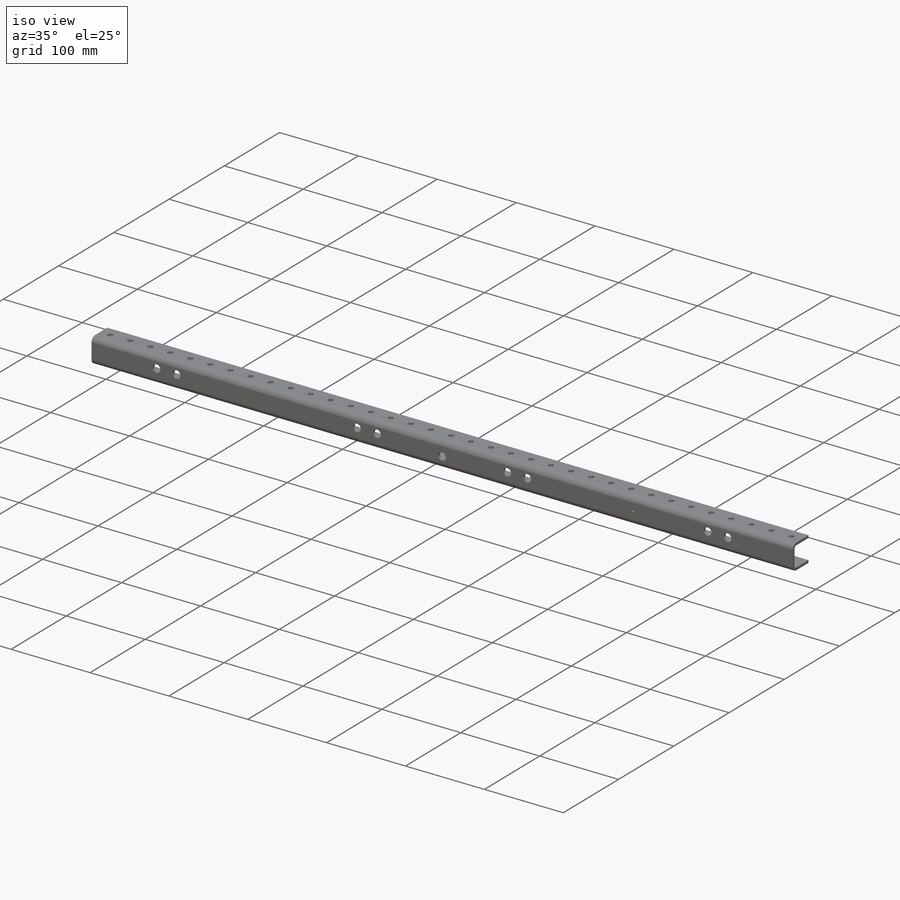
[diagram: iso view]
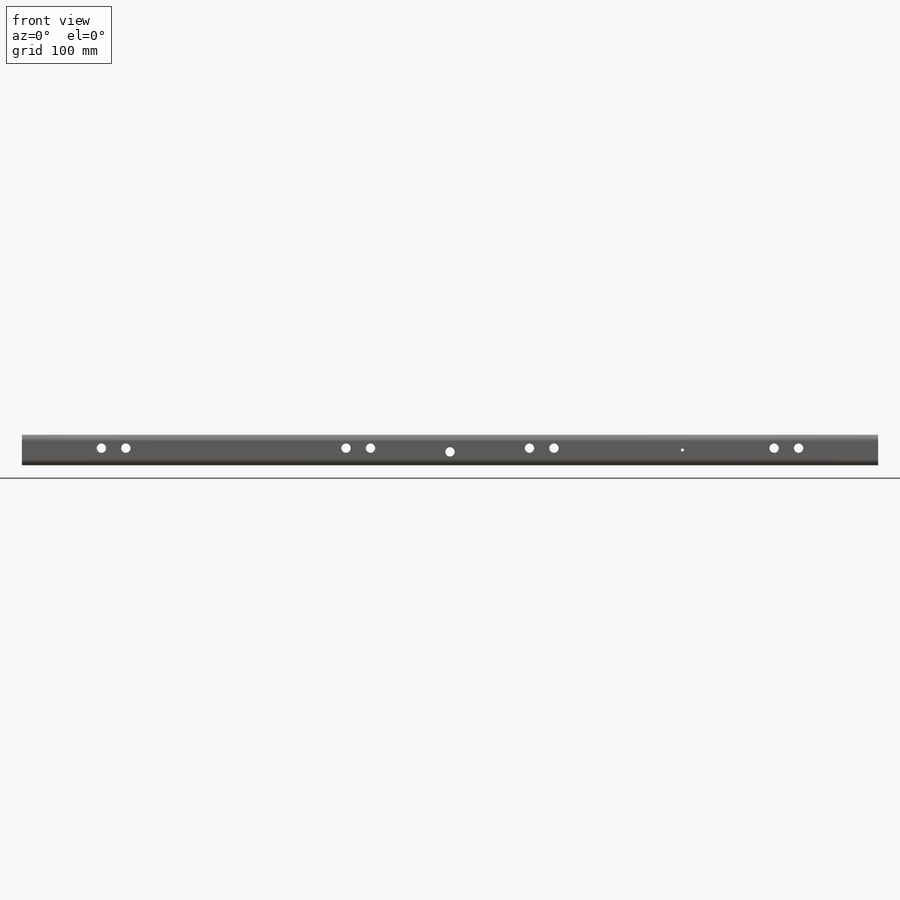
[diagram: front view]
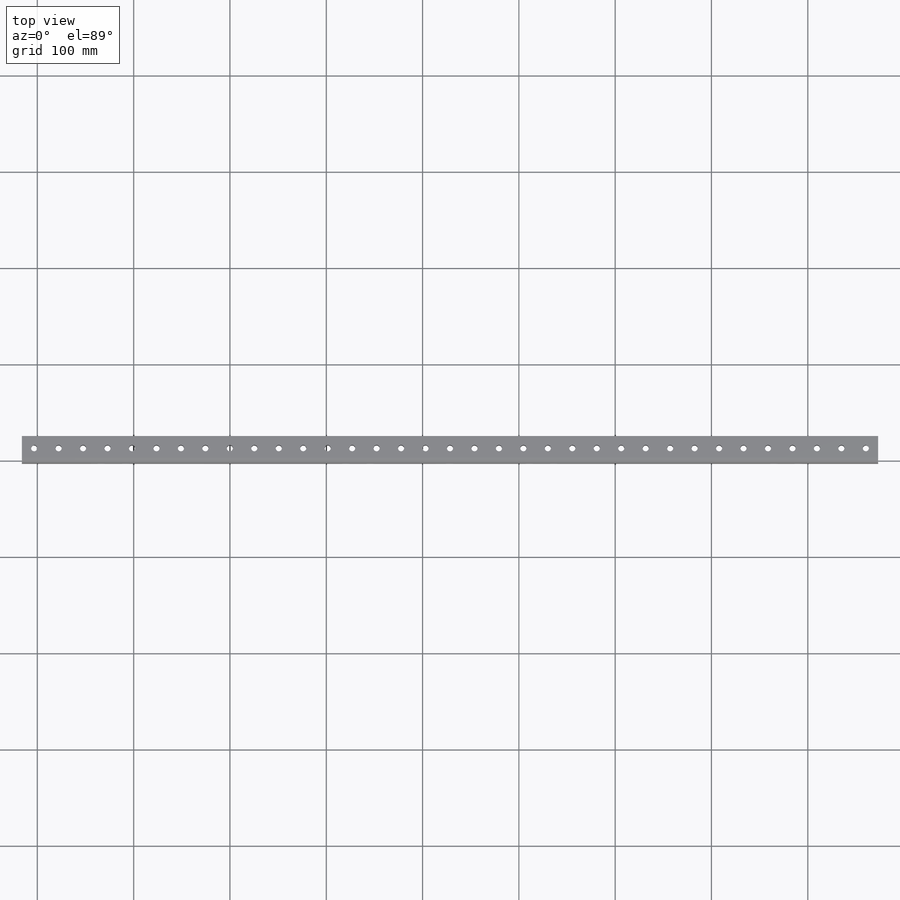
[diagram: top view]
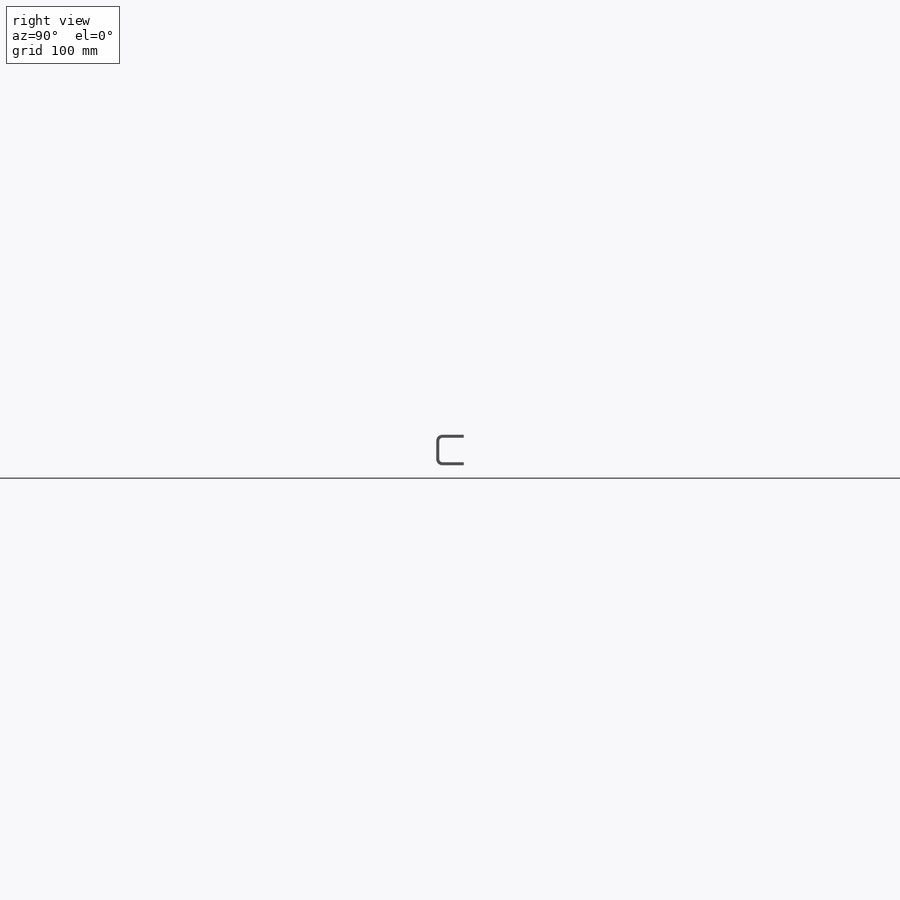
[diagram: right view]
SOLIDWORKS PART (.sldprt)
format: sldprt  version: not decoded by parser v0  size: 1,056,256 bytes
history: native  units: mm
features: sketch x162, hole x80, fillet x4, material x1, plane x1, extrude x1, cut_extrude x1 (+15 scaffold rows collapsed)
feature tree (265):
  scaffold x15  (default folders/planes/origin — collapsed)
  material  "6061-T6 (SS)"
  plane  "Plane1"  Offset=3.175mm
  sketch  "Sketch1"
  extrude  "Extrude1"  Depth=28.575mm
  sketch  "Sketch2"
  cut_extrude  "Extrude2"  Depth=889mm
  hole  "Hole1"  Diameter=6.35mm Depth=3.175mm
  sketch  "Sketch4"
  sketch  "Sketch3"  dims[Diameter=6.35mm Depth=3.175mm]
  hole  "Hole2"  Diameter=6.35mm Depth=3.175mm
  sketch  "Sketch6"
  sketch  "Sketch5"  dims[Diameter=6.35mm Depth=3.175mm]
  hole  "Hole3"  Diameter=6.35mm Depth=3.175mm
  sketch  "Sketch8"
  sketch  "Sketch7"  dims[Diameter=6.35mm Depth=3.175mm]
  hole  "Hole4"  Diameter=6.35mm Depth=3.175mm
  sketch  "Sketch10"
  sketch  "Sketch9"  dims[Diameter=6.35mm Depth=3.175mm]
  hole  "Hole5"  Diameter=6.35mm Depth=3.175mm
  sketch  "Sketch12"
  sketch  "Sketch11"  dims[Diameter=6.35mm Depth=3.175mm]
  hole  "Hole6"  Diameter=6.35mm Depth=3.175mm
  sketch  "Sketch14"
  sketch  "Sketch13"  dims[Diameter=6.35mm Depth=3.175mm]
  hole  "Hole7"  Diameter=6.35mm Depth=3.175mm
  sketch  "Sketch16"
  sketch  "Sketch15"  dims[Diameter=6.35mm Depth=3.175mm]
  hole  "Hole8"  Diameter=6.35mm Depth=3.175mm
  sketch  "Sketch18"
  sketch  "Sketch17"  dims[Diameter=6.35mm Depth=3.175mm]
  hole  "Hole9"  Diameter=6.35mm Depth=3.175mm
  sketch  "Sketch20"
  sketch  "Sketch19"  dims[Diameter=6.35mm Depth=3.175mm]
  hole  "Hole10"  Diameter=6.35mm Depth=3.175mm
  sketch  "Sketch22"
  sketch  "Sketch21"  dims[Diameter=6.35mm Depth=3.175mm]
  hole  "Hole11"  Diameter=6.35mm Depth=3.175mm
  sketch  "Sketch24"
  sketch  "Sketch23"  dims[Diameter=6.35mm Depth=3.175mm]
  hole  "Hole12"  Diameter=6.35mm Depth=3.175mm
  sketch  "Sketch26"
  sketch  "Sketch25"  dims[Diameter=6.35mm Depth=3.175mm]
  hole  "Hole13"  Diameter=6.35mm Depth=3.175mm
  sketch  "Sketch28"
  sketch  "Sketch27"  dims[Diameter=6.35mm Depth=3.175mm]
  hole  "Hole14"  Diameter=6.35mm Depth=3.175mm
  sketch  "Sketch30"
  sketch  "Sketch29"  dims[Diameter=6.35mm Depth=3.175mm]
  hole  "Hole15"  Diameter=6.35mm Depth=3.175mm
  sketch  "Sketch32"
  sketch  "Sketch31"  dims[Diameter=6.35mm Depth=3.175mm]
  hole  "Hole16"  Diameter=6.35mm Depth=3.175mm
  sketch  "Sketch34"
  sketch  "Sketch33"  dims[Diameter=6.35mm Depth=3.175mm]
  hole  "Hole17"  Diameter=6.35mm Depth=3.175mm
  sketch  "Sketch36"
  sketch  "Sketch35"  dims[Diameter=6.35mm Depth=3.175mm]
  hole  "Hole18"  Diameter=6.35mm Depth=3.175mm
  sketch  "Sketch38"
  sketch  "Sketch37"  dims[Diameter=6.35mm Depth=3.175mm]
  hole  "Hole19"  Diameter=6.35mm Depth=3.175mm
  sketch  "Sketch40"
  sketch  "Sketch39"  dims[Diameter=6.35mm Depth=3.175mm]
  hole  "Hole20"  Diameter=6.35mm Depth=3.175mm
  sketch  "Sketch42"
  sketch  "Sketch41"  dims[Diameter=6.35mm Depth=3.175mm]
  hole  "Hole21"  Diameter=6.35mm Depth=3.175mm
  sketch  "Sketch44"
  sketch  "Sketch43"  dims[Diameter=6.35mm Depth=3.175mm]
  hole  "Hole22"  Diameter=6.35mm Depth=3.175mm
  sketch  "Sketch46"
  sketch  "Sketch45"  dims[Diameter=6.35mm Depth=3.175mm]
  hole  "Hole23"  Diameter=6.35mm Depth=3.175mm
  sketch  "Sketch48"
  sketch  "Sketch47"  dims[Diameter=6.35mm Depth=3.175mm]
  hole  "Hole24"  Diameter=6.35mm Depth=3.175mm
  sketch  "Sketch50"
  sketch  "Sketch49"  dims[Diameter=6.35mm Depth=3.175mm]
  hole  "Hole25"  Diameter=6.35mm Depth=3.175mm
  sketch  "Sketch52"
  sketch  "Sketch51"  dims[Diameter=6.35mm Depth=3.175mm]
  hole  "Hole26"  Diameter=6.35mm Depth=3.175mm
  sketch  "Sketch54"
  sketch  "Sketch53"  dims[Diameter=6.35mm Depth=3.175mm]
  hole  "Hole27"  Diameter=6.35mm Depth=3.175mm
  sketch  "Sketch56"
  sketch  "Sketch55"  dims[Diameter=6.35mm Depth=3.175mm]
  hole  "Hole28"  Diameter=6.35mm Depth=3.175mm
  sketch  "Sketch58"
  sketch  "Sketch57"  dims[Diameter=6.35mm Depth=3.175mm]
  hole  "Hole29"  Diameter=6.35mm Depth=3.175mm
  sketch  "Sketch60"
  sketch  "Sketch59"  dims[Diameter=6.35mm Depth=3.175mm]
  hole  "Hole30"  Diameter=6.35mm Depth=3.175mm
  sketch  "Sketch62"
  sketch  "Sketch61"  dims[Diameter=6.35mm Depth=3.175mm]
  hole  "Hole31"  Diameter=6.35mm Depth=3.175mm
  sketch  "Sketch64"
  sketch  "Sketch63"  dims[Diameter=6.35mm Depth=3.175mm]
  hole  "Hole32"  Diameter=6.35mm Depth=3.175mm
  sketch  "Sketch66"
  sketch  "Sketch65"  dims[Diameter=6.35mm Depth=3.175mm]
  hole  "Hole33"  Diameter=6.35mm Depth=3.175mm
  sketch  "Sketch68"
  sketch  "Sketch67"  dims[Diameter=6.35mm Depth=3.175mm]
  hole  "Hole34"  Diameter=6.35mm Depth=3.175mm
  sketch  "Sketch70"
  sketch  "Sketch69"  dims[Diameter=6.35mm Depth=3.175mm]
  hole  "Hole35"  Diameter=6.35mm Depth=3.175mm
  sketch  "Sketch72"
  sketch  "Sketch71"  dims[Diameter=6.35mm Depth=3.175mm]
  hole  "Hole36"  Diameter=9.652mm Depth=28.575mm
  sketch  "Sketch74"
  sketch  "Sketch73"  dims[Diameter=9.652mm Depth=28.575mm]
  hole  "Hole37"  Diameter=9.652mm Depth=28.575mm
  sketch  "Sketch76"
  sketch  "Sketch75"  dims[Diameter=9.652mm Depth=28.575mm]
  hole  "Hole38"  Diameter=9.652mm Depth=28.575mm
  sketch  "Sketch78"
  sketch  "Sketch77"  dims[Diameter=9.652mm Depth=28.575mm]
  hole  "Hole39"  Diameter=9.652mm Depth=28.575mm
  sketch  "Sketch80"
  sketch  "Sketch79"  dims[Diameter=9.652mm Depth=28.575mm]
  hole  "Hole40"  Diameter=9.652mm Depth=28.575mm
  sketch  "Sketch82"
  sketch  "Sketch81"  dims[Diameter=9.652mm Depth=28.575mm]
  hole  "Hole41"  Diameter=9.652mm Depth=28.575mm
  sketch  "Sketch84"
  sketch  "Sketch83"  dims[Diameter=9.652mm Depth=28.575mm]
  hole  "Hole42"  Diameter=9.652mm Depth=28.575mm
  sketch  "Sketch86"
  sketch  "Sketch85"  dims[Diameter=9.652mm Depth=28.575mm]
  hole  "Hole43"  Diameter=9.652mm Depth=28.575mm
  sketch  "Sketch88"
  sketch  "Sketch87"  dims[Diameter=9.652mm Depth=28.575mm]
  hole  "Hole44"  Diameter=9.652mm Depth=28.575mm
  sketch  "Sketch90"
  sketch  "Sketch89"  dims[Diameter=9.652mm Depth=28.575mm]
  hole  "Hole45"  Diameter=3.175mm Depth=28.575mm
  sketch  "Sketch92"
  sketch  "Sketch91"  dims[Diameter=3.175mm Depth=28.575mm]
  hole  "Hole46"  Diameter=6.35mm Depth=31.75mm
  sketch  "Sketch94"
  sketch  "Sketch93"  dims[Diameter=6.35mm Depth=31.75mm]
  hole  "Hole47"  Diameter=6.35mm Depth=31.75mm
  sketch  "Sketch96"
  sketch  "Sketch95"  dims[Diameter=6.35mm Depth=31.75mm]
  hole  "Hole48"  Diameter=6.35mm Depth=31.75mm
  sketch  "Sketch98"
  sketch  "Sketch97"  dims[Diameter=6.35mm Depth=31.75mm]
  hole  "Hole49"  Diameter=6.35mm Depth=31.75mm
  sketch  "Sketch100"
  sketch  "Sketch99"  dims[Diameter=6.35mm Depth=31.75mm]
  hole  "Hole50"  Diameter=6.35mm Depth=31.75mm
  sketch  "Sketch102"
  sketch  "Sketch101"  dims[Diameter=6.35mm Depth=31.75mm]
  hole  "Hole51"  Diameter=6.35mm Depth=31.75mm
  sketch  "Sketch104"
  sketch  "Sketch103"  dims[Diameter=6.35mm Depth=31.75mm]
  hole  "Hole52"  Diameter=6.35mm Depth=31.75mm
  sketch  "Sketch106"
  sketch  "Sketch105"  dims[Diameter=6.35mm Depth=31.75mm]
  hole  "Hole53"  Diameter=6.35mm Depth=31.75mm
  sketch  "Sketch108"
  sketch  "Sketch107"  dims[Diameter=6.35mm Depth=31.75mm]
  hole  "Hole54"  Diameter=6.35mm Depth=31.75mm
  sketch  "Sketch110"
  sketch  "Sketch109"  dims[Diameter=6.35mm Depth=31.75mm]
  hole  "Hole55"  Diameter=6.35mm Depth=31.75mm
  sketch  "Sketch112"
  sketch  "Sketch111"  dims[Diameter=6.35mm Depth=31.75mm]
  hole  "Hole56"  Diameter=6.35mm Depth=31.75mm
  sketch  "Sketch114"
  sketch  "Sketch113"  dims[Diameter=6.35mm Depth=31.75mm]
  hole  "Hole57"  Diameter=6.35mm Depth=31.75mm
  sketch  "Sketch116"
  sketch  "Sketch115"  dims[Diameter=6.35mm Depth=31.75mm]
  hole  "Hole58"  Diameter=6.35mm Depth=31.75mm
  sketch  "Sketch118"
  sketch  "Sketch117"  dims[Diameter=6.35mm Depth=31.75mm]
  hole  "Hole59"  Diameter=6.35mm Depth=31.75mm
  sketch  "Sketch120"
  sketch  "Sketch119"  dims[Diameter=6.35mm Depth=31.75mm]
  hole  "Hole60"  Diameter=6.35mm Depth=31.75mm
  sketch  "Sketch122"
  sketch  "Sketch121"  dims[Diameter=6.35mm Depth=31.75mm]
  hole  "Hole61"  Diameter=6.35mm Depth=31.75mm
  sketch  "Sketch124"
  sketch  "Sketch123"  dims[Diameter=6.35mm Depth=31.75mm]
  hole  "Hole62"  Diameter=6.35mm Depth=31.75mm
  sketch  "Sketch126"
  sketch  "Sketch125"  dims[Diameter=6.35mm Depth=31.75mm]
  hole  "Hole63"  Diameter=6.35mm Depth=31.75mm
  sketch  "Sketch128"
  sketch  "Sketch127"  dims[Diameter=6.35mm Depth=31.75mm]
  hole  "Hole64"  Diameter=6.35mm Depth=31.75mm
  sketch  "Sketch130"
  sketch  "Sketch129"  dims[Diameter=6.35mm Depth=31.75mm]
  hole  "Hole65"  Diameter=6.35mm Depth=31.75mm
  sketch  "Sketch132"
  sketch  "Sketch131"  dims[Diameter=6.35mm Depth=31.75mm]
  hole  "Hole66"  Diameter=6.35mm Depth=31.75mm
  sketch  "Sketch134"
  sketch  "Sketch133"  dims[Diameter=6.35mm Depth=31.75mm]
  hole  "Hole67"  Diameter=6.35mm Depth=31.75mm
  sketch  "Sketch136"
  sketch  "Sketch135"  dims[Diameter=6.35mm Depth=31.75mm]
  hole  "Hole68"  Diameter=6.35mm Depth=31.75mm
  sketch  "Sketch138"
  sketch  "Sketch137"  dims[Diameter=6.35mm Depth=31.75mm]
  hole  "Hole69"  Diameter=6.35mm Depth=31.75mm
  sketch  "Sketch140"
  sketch  "Sketch139"  dims[Diameter=6.35mm Depth=31.75mm]
  hole  "Hole70"  Diameter=6.35mm Depth=31.75mm
  sketch  "Sketch142"
  sketch  "Sketch141"  dims[Diameter=6.35mm Depth=31.75mm]
  hole  "Hole71"  Diameter=6.35mm Depth=31.75mm
  sketch  "Sketch144"
  sketch  "Sketch143"  dims[Diameter=6.35mm Depth=31.75mm]
  hole  "Hole72"  Diameter=6.35mm Depth=31.75mm
  sketch  "Sketch146"
  sketch  "Sketch145"  dims[Diameter=6.35mm Depth=31.75mm]
  hole  "Hole73"  Diameter=6.35mm Depth=31.75mm
  sketch  "Sketch148"
  sketch  "Sketch147"  dims[Diameter=6.35mm Depth=31.75mm]
  hole  "Hole74"  Diameter=6.35mm Depth=31.75mm
  sketch  "Sketch150"
  sketch  "Sketch149"  dims[Diameter=6.35mm Depth=31.75mm]
  hole  "Hole75"  Diameter=6.35mm Depth=31.75mm
  sketch  "Sketch152"
  sketch  "Sketch151"  dims[Diameter=6.35mm Depth=31.75mm]
  hole  "Hole76"  Diameter=6.35mm Depth=31.75mm
  sketch  "Sketch154"
  sketch  "Sketch153"  dims[Diameter=6.35mm Depth=31.75mm]
  hole  "Hole77"  Diameter=6.35mm Depth=31.75mm
  sketch  "Sketch156"
  sketch  "Sketch155"  dims[Diameter=6.35mm Depth=31.75mm]
  hole  "Hole78"  Diameter=6.35mm Depth=31.75mm
  sketch  "Sketch158"
  sketch  "Sketch157"  dims[Diameter=6.35mm Depth=31.75mm]
  hole  "Hole79"  Diameter=6.35mm Depth=31.75mm
  sketch  "Sketch160"
  sketch  "Sketch159"  dims[Diameter=6.35mm Depth=31.75mm]
  hole  "Hole80"  Diameter=6.35mm Depth=31.75mm
  sketch  "Sketch162"
  sketch  "Sketch161"  dims[Diameter=6.35mm Depth=31.75mm]
  fillet  "Fillet1"  Radius=3.175mm
  fillet  "Fillet2"  Radius=3.175mm
  fillet  "Fillet3"  Radius=6.35mm
  fillet  "Fillet4"  Radius=6.35mm
decode coverage: 166 of 248 modeling features carry decoded parameters
summary: Diameter pulled from absorbed wizard sketch
note: suppression state not decoded; provenance and decode notes live in map.json
